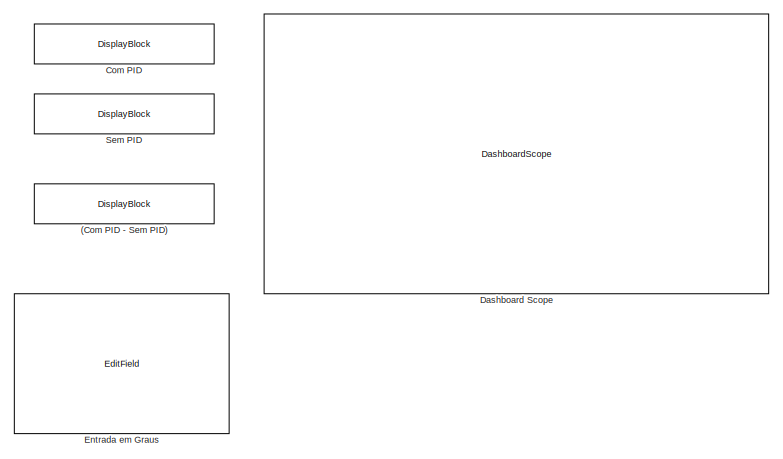
[diagram: root canvas - part 1/2, top right region]
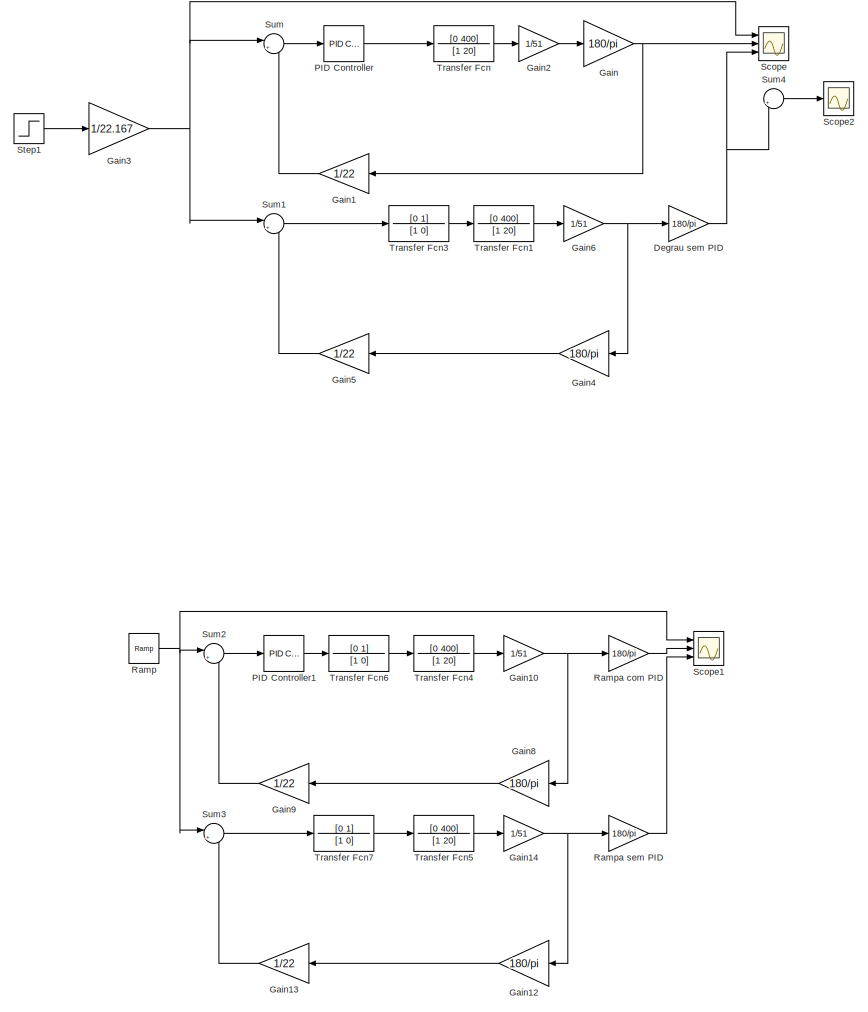
[diagram: root canvas - part 2/2, left side, full height]
MODEL slx_94a1e7a7ca4e
KIND model
CONFIG AbsTol = auto
CONFIG EnableMultiTasking = off
CONFIG FixedStep = auto
CONFIG MaxStep = auto
CONFIG MinStep = auto
CONFIG RelTol = 1e-3
CONFIG SampleTimeConstraint = Unconstrained
CONFIG Solver = VariableStepAuto
CONFIG SolverName = VariableStepAuto
CONFIG StartTime = 0.0
CONFIG StopTime = 15
BLOCK [DisplayBlock] (Com PID - Sem PID)
  Format = short
  LabelPosition = Hide
  Transparency = 1
BLOCK [DisplayBlock] Com PID
  Format = short
  LabelPosition = Hide
  Transparency = 1
BLOCK [DashboardScope] Dashboard Scope
  Ymax = 190
  Ymin = 0
BLOCK [Gain] Degrau sem PID
  Gain = 180/pi
BLOCK [EditField] Entrada em Graus
  Alignment = Center
  LabelPosition = Hide
  ShowInitialText = on
BLOCK [Gain] Gain
  Gain = 180/pi
BLOCK [Gain] Gain1
  Gain = 1/22
BLOCK [Gain] Gain10
  Gain = 1/51
BLOCK [Gain] Gain12
  Gain = 180/pi
BLOCK [Gain] Gain13
  Gain = 1/22
BLOCK [Gain] Gain14
  Gain = 1/51
BLOCK [Gain] Gain2
  Gain = 1/51
BLOCK [Gain] Gain3
  Gain = 1/22.167
BLOCK [Gain] Gain4
  Gain = 180/pi
BLOCK [Gain] Gain5
  Gain = 1/22
BLOCK [Gain] Gain6
  Gain = 1/51
BLOCK [Gain] Gain8
  Gain = 180/pi
BLOCK [Gain] Gain9
  Gain = 1/22
BLOCK [Reference] PID Controller  REF=simulink/Continuous/PID Controller
  Ports = [1, 1]
  SourceBlock = simulink/Continuous/PID Controller
  SourceProductBaseCode = SL
  SourceType = PID 1dof
BLOCK [Reference] PID Controller1  REF=simulink/Continuous/PID Controller
  Ports = [1, 1]
  SourceBlock = simulink/Continuous/PID Controller
  SourceProductBaseCode = SL
  SourceType = PID 1dof
BLOCK [Reference] Ramp  REF=simulink/Sources/Ramp
  Ports = [0, 1]
  SourceBlock = simulink/Sources/Ramp
  SourceProductBaseCode = SL
  SourceType = Ramp
BLOCK [Gain] Rampa com PID 
  Gain = 180/pi
BLOCK [Gain] Rampa sem PID
  Gain = 180/pi
BLOCK [Scope] Scope
  Floating = off
  NumInputPorts = 3
  Ports = [3]
  ScopeSpecificationString = Simulink.scopes.TimeScopeBlockCfg('CurrentConfiguration', extmgr.ConfigurationSet(extmgr.Configuration('Core','General UI',true),extmgr.Configuration('Core','Source UI',true),extmgr.Configuration('Sources','WiredSimulink',true),extmgr.Configuration('Visuals','Time Domain',true,'SerializedDisplays',{struct('MinYLimReal','-20.04136','MaxYLimReal','180.37228','YLabelReal','','MinYLimMag','0.00000','M...<+1737ch>
BLOCK [Scope] Scope1
  Floating = off
  NumInputPorts = 3
  Ports = [3]
  ScopeSpecificationString = Simulink.scopes.TimeScopeBlockCfg('CurrentConfiguration', extmgr.ConfigurationSet(extmgr.Configuration('Core','General UI',true),extmgr.Configuration('Core','Source UI',true),extmgr.Configuration('Sources','WiredSimulink',true,'DataLoggingVariableName','ScopeData1'),extmgr.Configuration('Visuals','Time Domain',true,'SerializedDisplays',{struct('MinYLimReal','-82.5','MaxYLimReal','742.5','YLabelRea...<+1740ch>
BLOCK [Scope] Scope2
  Floating = off
  NumInputPorts = 1
  Ports = [1]
  ScopeSpecificationString = Simulink.scopes.TimeScopeBlockCfg('CurrentConfiguration', extmgr.ConfigurationSet(extmgr.Configuration('Core','General UI',true),extmgr.Configuration('Core','Source UI',true),extmgr.Configuration('Sources','WiredSimulink',true,'DataLoggingVariableName','ScopeData1'),extmgr.Configuration('Visuals','Time Domain',true,'SerializedDisplays',{struct('MinYLimReal','-42.84956','MaxYLimReal','385.64607','Y...<+1788ch>
BLOCK [DisplayBlock] Sem PID
  Format = short
  LabelPosition = Hide
  Transparency = 1
BLOCK [Step] Step1
  After = 120
  SampleTime = 0
BLOCK [Sum] Sum
  Inputs = |+-
  Ports = [2, 1]
BLOCK [Sum] Sum1
  Inputs = |+-
  Ports = [2, 1]
BLOCK [Sum] Sum2
  Inputs = |+-
  Ports = [2, 1]
BLOCK [Sum] Sum3
  Inputs = |+-
  Ports = [2, 1]
BLOCK [Sum] Sum4
  Inputs = |+-
  Ports = [2, 1]
BLOCK [TransferFcn] Transfer Fcn
  Denominator = [1 20]
  Numerator = [0 400]
BLOCK [TransferFcn] Transfer Fcn1
  Denominator = [1 20]
  Numerator = [0 400]
BLOCK [TransferFcn] Transfer Fcn3
  Denominator = [1 0]
  Numerator = [0 1]
BLOCK [TransferFcn] Transfer Fcn4
  Denominator = [1 20]
  Numerator = [0 400]
BLOCK [TransferFcn] Transfer Fcn5
  Denominator = [1 20]
  Numerator = [0 400]
BLOCK [TransferFcn] Transfer Fcn6
  Denominator = [1 0]
  Numerator = [0 1]
BLOCK [TransferFcn] Transfer Fcn7
  Denominator = [1 0]
  Numerator = [0 1]
NET Degrau sem PID:1 -> Scope:3, Sum4:2
NET Gain10:1 -> Gain8:1, Rampa com PID :1
LINE Gain12:1 -> Gain13:1
LINE Gain13:1 -> Sum3:2
NET Gain14:1 -> Gain12:1, Rampa sem PID:1
LINE Gain1:1 -> Sum:2
LINE Gain2:1 -> Gain:1
NET Gain3:1 -> Scope:1, Sum1:1, Sum:1
LINE Gain4:1 -> Gain5:1
LINE Gain5:1 -> Sum1:2
NET Gain6:1 -> Degrau sem PID:1, Gain4:1
LINE Gain8:1 -> Gain9:1
LINE Gain9:1 -> Sum2:2
NET Gain:1 -> Gain1:1, Scope:2
LINE PID Controller1:1 -> Transfer Fcn6:1
LINE PID Controller:1 -> Transfer Fcn:1
NET Ramp:1 -> Scope1:1, Sum2:1, Sum3:1
LINE Rampa com PID :1 -> Scope1:2
LINE Rampa sem PID:1 -> Scope1:3
LINE Step1:1 -> Gain3:1
LINE Sum1:1 -> Transfer Fcn3:1
LINE Sum2:1 -> PID Controller1:1
LINE Sum3:1 -> Transfer Fcn7:1
LINE Sum4:1 -> Scope2:1
LINE Sum:1 -> PID Controller:1
LINE Transfer Fcn1:1 -> Gain6:1
LINE Transfer Fcn3:1 -> Transfer Fcn1:1
LINE Transfer Fcn4:1 -> Gain10:1
LINE Transfer Fcn5:1 -> Gain14:1
LINE Transfer Fcn6:1 -> Transfer Fcn4:1
LINE Transfer Fcn7:1 -> Transfer Fcn5:1
LINE Transfer Fcn:1 -> Gain2:1
note: NET lines group one-source signal fan-out (src -> all destinations, sorted); 1:1 wires keep LINE
